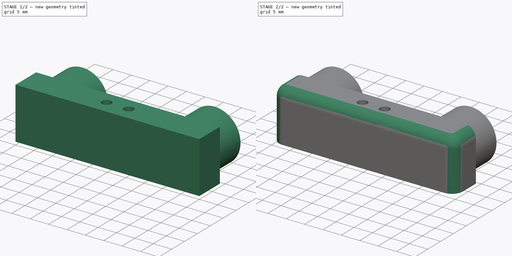
[diagram: build sequence overview — one tinted view per stage of 2, left to right]
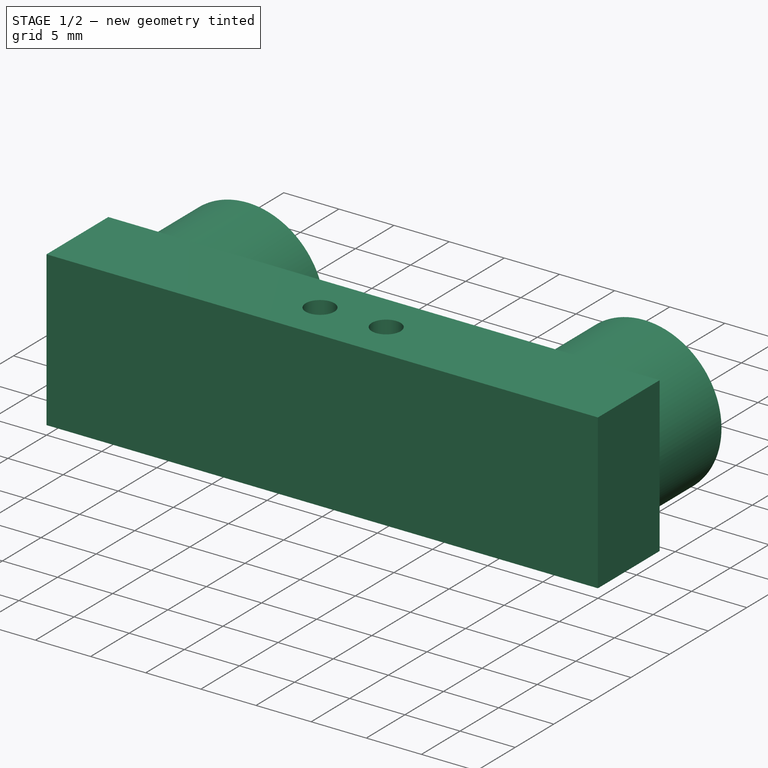
[diagram: stage 1 of 2 — iso view after this stage's code; geometry added in this stage tinted green]
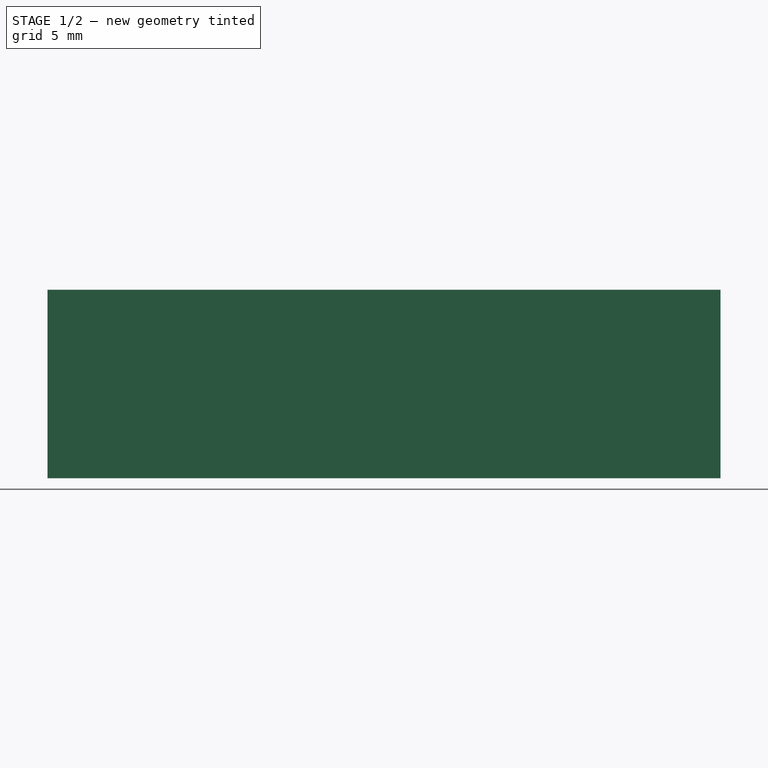
[diagram: stage 1 of 2 — front view after this stage's code; geometry added in this stage tinted green]
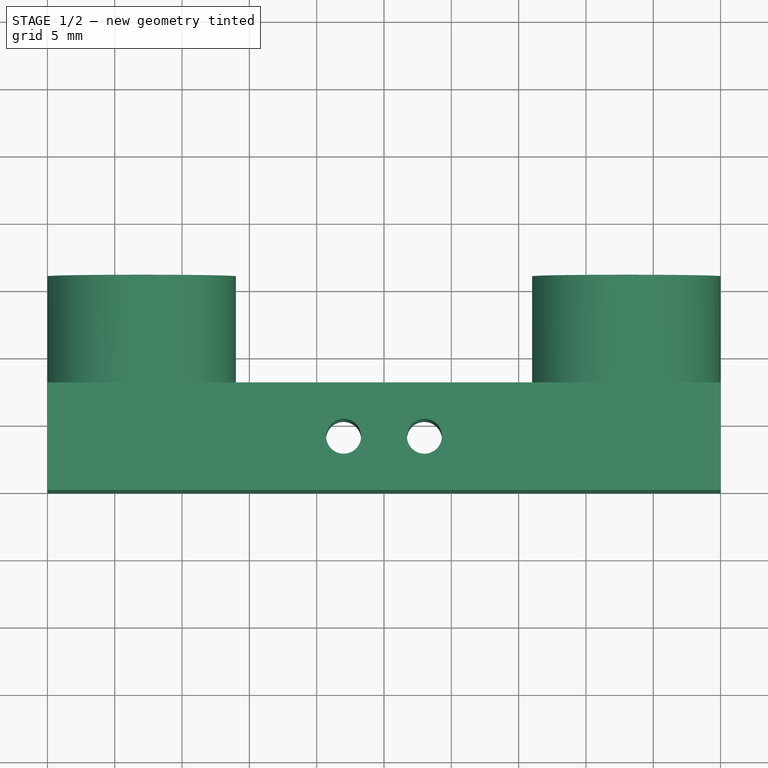
[diagram: stage 1 of 2 — top view after this stage's code; geometry added in this stage tinted green]
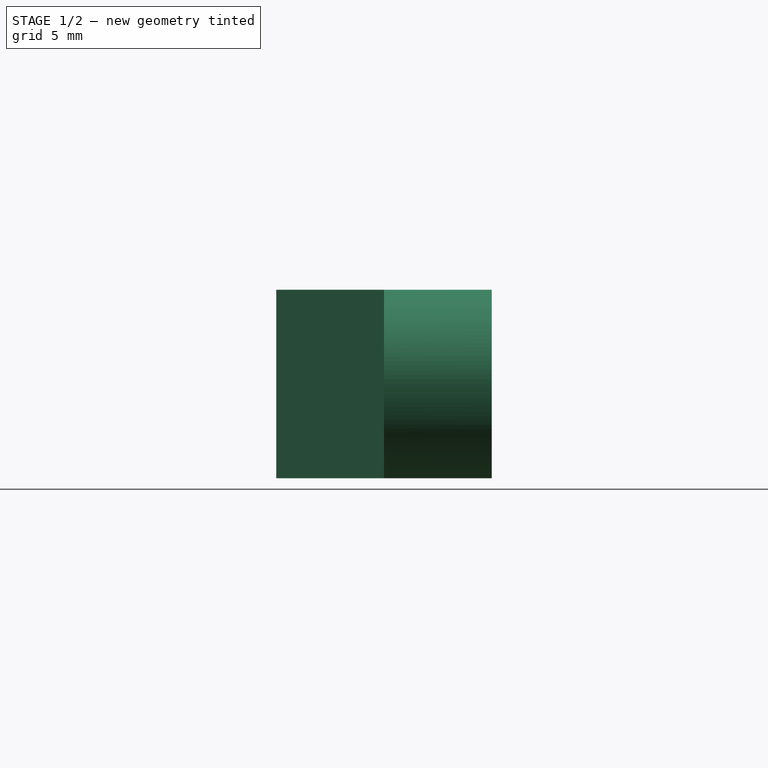
[diagram: stage 1 of 2 — right view after this stage's code; geometry added in this stage tinted green]
FCSTD DOCUMENT  (FreeCAD 0.21R33668 +26 (Git))
Label: stabiliser_holder
License: All rights reserved
LicenseURL: https://en.wikipedia.org/wiki/All_rights_reserved
objects: Sketcher::SketchObject×3, PartDesign::Pad×2, PartDesign::Pocket×1, PartDesign::Fillet×1, PartDesign::Body×1
note: 12 computed .brp shape members not serialized (recipe doc carries the construction recipe); baked Part::Feature solids carry a one-line shape summary decoded from their .brp

FEATURE [Sketcher::SketchObject] Sketch
  FullyConstrained = false
  MapMode = 5
  Support = -> [XY_Plane]
  sketch-geometry (12):
    g0: LineSegment StartX=-50 StartY=8 StartZ=0 EndX=0 EndY=8 EndZ=0
    g1: LineSegment StartX=0 StartY=8 StartZ=0 EndX=0 EndY=0 EndZ=0
    g2: LineSegment StartX=0 StartY=0 StartZ=0 EndX=-50 EndY=0 EndZ=0
    g3: LineSegment StartX=-50 StartY=0 StartZ=0 EndX=-50 EndY=8 EndZ=0
    g4: Circle CenterX=-28 CenterY=4 CenterZ=0 NormalX=0 NormalY=0 NormalZ=1 AngleXU=0 Radius=1.3
    g5: Circle CenterX=-22 CenterY=4 CenterZ=0 NormalX=0 NormalY=0 NormalZ=1 AngleXU=0 Radius=1.3
    g6: GeomPoint X=-50 Y=5.43763 Z=0
    g7: GeomPoint X=0 Y=4 Z=0
    g8: GeomPoint X=-29.2588 Y=3.67544 Z=0
    g9: GeomPoint X=-23.2079 Y=4.48052 Z=0
    g10: LineSegment StartX=-22 StartY=4 StartZ=0 EndX=0 EndY=4 EndZ=0
    g11: LineSegment StartX=-28 StartY=4 StartZ=0 EndX=-22 EndY=4 EndZ=0
  constraints (27):
    c: Coincident(g0,g1)
    c: Coincident(g1,g2)
    c: Coincident(g2,g3)
    c: Coincident(g3,g0)
    c: Horizontal(g0)
    c: Horizontal(g2)
    c: Vertical(g1)
    c: Vertical(g3)
    c: Distance(g1) = 8
    c: Distance(g0) = 50
    c: PointOnObject(g6,g3)
    c: PointOnObject(g7,g1)
    c: Distance(g7,g1) = 4
    c: PointOnObject(g8,g4)
    c: PointOnObject(g9,g5)
    c: Distance(g4,g8) = 1.3
    c: Distance(g9,g5) = 1.3
    c: Coincident(g10,g5)
    c: Coincident(g10,g7)
    c: Horizontal(g10)
    c: Distance(g10) = 22
    c: Coincident(g11,g4)
    c: Coincident(g11,g5)
    c: Horizontal(g11)
    c: Distance(g11) = 6
    c: PointOnObject(g1,g-1)
    c: PointOnObject(g1,g-2)
FEATURE [PartDesign::Pad] Pad
  Direction = (0,0,1)
  Length = 14
  Length2 = 10
  Profile = -> Sketch
  ReferenceAxis = -> Sketch [N_Axis]
  Type = 0
FEATURE [Sketcher::SketchObject] Sketch001
  FullyConstrained = false
  MapMode = 5
  Placement = pos=(0,8,0) rot=(0,0.707107,0.707107;3.14159rad)
  Support = -> [Pad]
  sketch-geometry (12):
    g0: Circle CenterX=5 CenterY=7 CenterZ=0 NormalX=0 NormalY=0 NormalZ=1 AngleXU=0 Radius=4
    g1: Circle CenterX=45 CenterY=7 CenterZ=0 NormalX=0 NormalY=0 NormalZ=1 AngleXU=0 Radius=4
    g2: GeomPoint X=7.36958 Y=10.2226 Z=0
    g3: GeomPoint X=43.5738 Y=10.7371 Z=0
    g4: LineSegment StartX=5 StartY=7 StartZ=0 EndX=45 EndY=7 EndZ=0
    g5: GeomPoint X=25 Y=7 Z=0
    g6: GeomPoint X=25 Y=0 Z=0
    g7: LineSegment StartX=25 StartY=7 StartZ=0 EndX=25 EndY=0 EndZ=0
    g8: Circle CenterX=7 CenterY=7 CenterZ=0 NormalX=0 NormalY=0 NormalZ=1 AngleXU=0 Radius=7
    g9: Circle CenterX=43 CenterY=7 CenterZ=0 NormalX=0 NormalY=0 NormalZ=1 AngleXU=0 Radius=7
    g10: GeomPoint X=2.48013 Y=12.3452 Z=0
    g11: GeomPoint X=37.1344 Y=10.8203 Z=0
  constraints (24):
    c: PointOnObject(g2,g0)
    c: PointOnObject(g3,g1)
    c: Distance(g0,g2) = 4
    c: Distance(g1,g3) = 4
    c: Coincident(g4,g0)
    c: Coincident(g4,g1)
    c: Horizontal(g4)
    c: Distance(g4) = 40
    c: PointOnObject(g5,g4)
    c: Distance(g0,g5) = 20
    c: PointOnObject(g6,g-1)
    c: Distance(g-1,g6) = 25
    c: Coincident(g7,g5)
    c: Coincident(g7,g6)
    c: Vertical(g7)
    c: Distance(g7) = 7
    c: PointOnObject(g8,g4)
    c: Distance(g8,g5) = 18
    c: PointOnObject(g9,g4)
    c: Distance(g5,g9) = 18
    c: PointOnObject(g10,g8)
    c: PointOnObject(g11,g9)
    c: Distance(g8,g10) = 7
    c: Distance(g11,g9) = 7
FEATURE [PartDesign::Pad] Pad001
  BaseFeature = -> Pad
  Direction = (0,1,-2e-16)
  Length = 8
  Length2 = 10
  Profile = -> Sketch001
  ReferenceAxis = -> Sketch001 [N_Axis]
  Type = 0
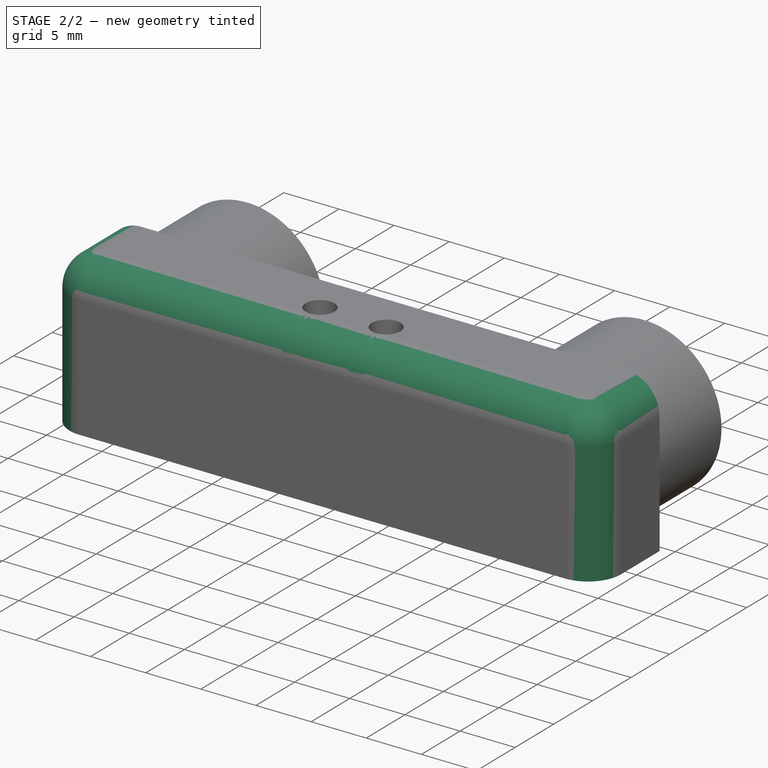
[diagram: stage 2 of 2 — iso view after this stage's code; geometry added in this stage tinted green]
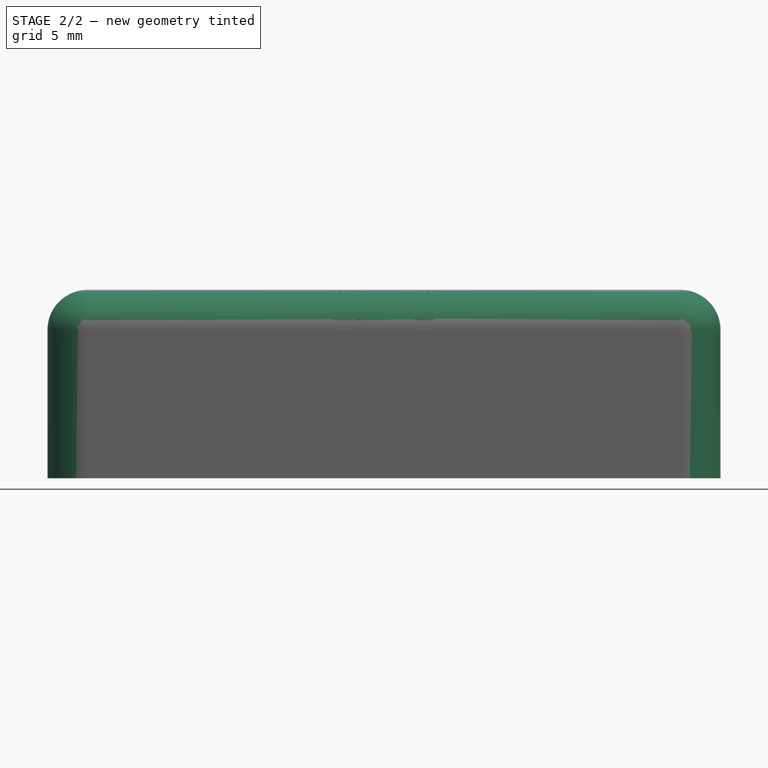
[diagram: stage 2 of 2 — front view after this stage's code; geometry added in this stage tinted green]
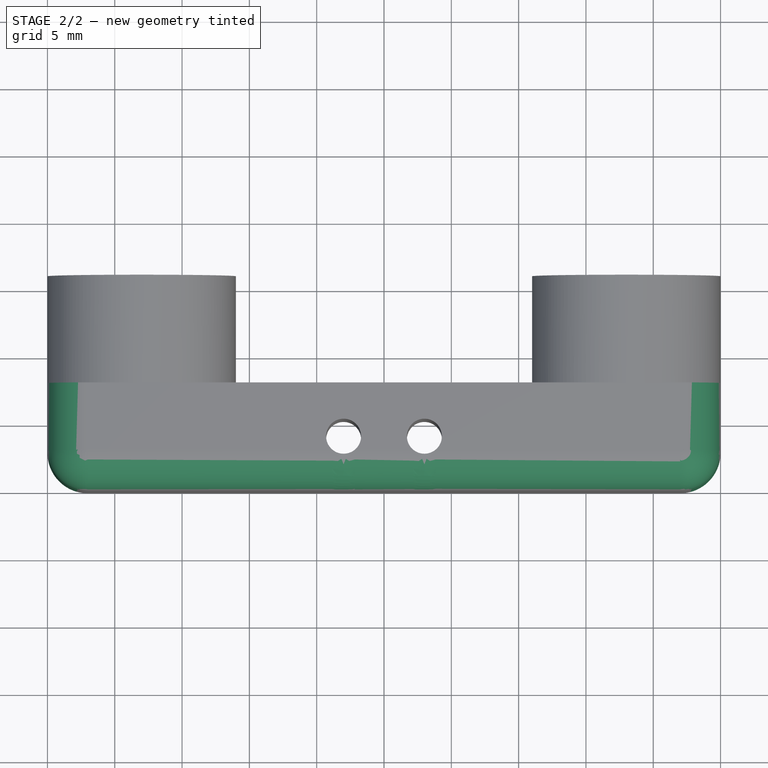
[diagram: stage 2 of 2 — top view after this stage's code; geometry added in this stage tinted green]
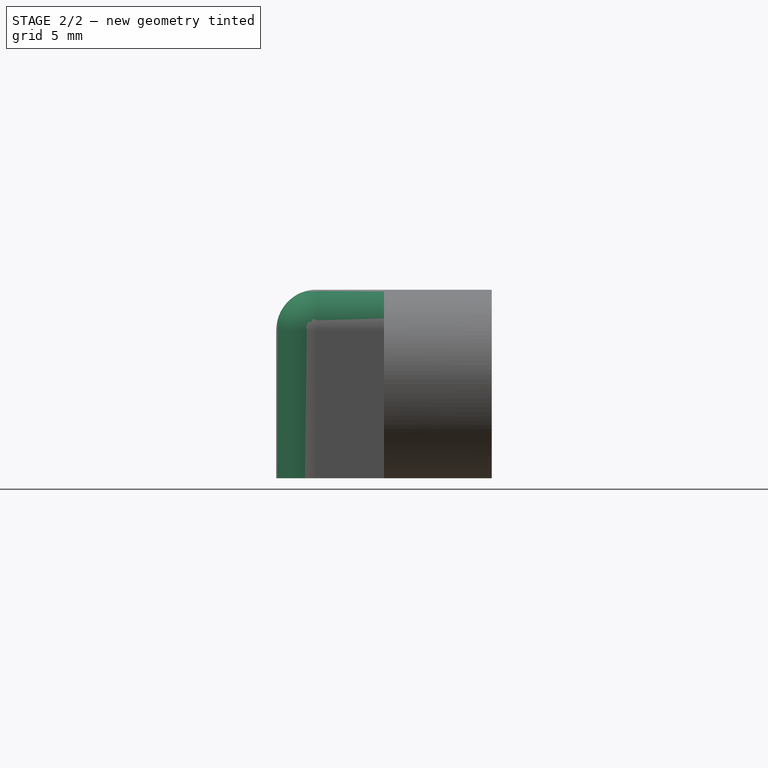
[diagram: stage 2 of 2 — right view after this stage's code; geometry added in this stage tinted green]
FEATURE [Sketcher::SketchObject] Sketch002
  AttachmentOffset = pos=(0,0,8) rot=(0,0,1;0rad)
  FullyConstrained = false
  MapMode = 5
  Placement = pos=(0,16,-1.8e-15) rot=(0,0.707107,0.707107;3.14159rad)
  Support = -> [Pad001]
  sketch-geometry (8):
    g0: Circle CenterX=5 CenterY=7 CenterZ=0 NormalX=0 NormalY=0 NormalZ=1 AngleXU=0 Radius=4
    g1: Circle CenterX=45 CenterY=7 CenterZ=0 NormalX=0 NormalY=0 NormalZ=1 AngleXU=0 Radius=4
    g2: LineSegment StartX=5 StartY=7 StartZ=0 EndX=45 EndY=7 EndZ=0
    g3: GeomPoint X=5.55814 Y=10.9609 Z=0
    g4: GeomPoint X=42.2894 Y=9.94151 Z=0
    g5: GeomPoint X=25 Y=7 Z=0
    g6: GeomPoint X=25 Y=0 Z=0
    g7: LineSegment StartX=25 StartY=0 StartZ=0 EndX=25 EndY=7 EndZ=0
  constraints (16):
    c: Coincident(g2,g0)
    c: Coincident(g2,g1)
    c: Horizontal(g2)
    c: Distance(g2) = 40
    c: PointOnObject(g3,g0)
    c: PointOnObject(g4,g1)
    c: Distance(g3,g0) = 4
    c: Distance(g4,g1) = 4
    c: PointOnObject(g5,g2)
    c: Distance(g0,g5) = 20
    c: PointOnObject(g6,g-1)
    c: Distance(g-1,g6) = 25
    c: Coincident(g7,g6)
    c: Coincident(g7,g5)
    c: Vertical(g7)
    c: Distance(g7) = 7
FEATURE [PartDesign::Pocket] Pocket
  BaseFeature = -> Pad001
  Direction = (0,-1,2e-16)
  Length = 5
  Length2 = 5
  Profile = -> Sketch002
  ReferenceAxis = -> Sketch002 [N_Axis]
  Type = 0
FEATURE [PartDesign::Fillet] Fillet
  Base = -> Pocket [Edge24,Edge26,Edge15,Edge25,Edge17]
  BaseFeature = -> Pocket
  Radius = 3
  SupportTransform = false
  UseAllEdges = false
FEATURE [PartDesign::Body] Body
  Group = -> [Sketch,Pad,Sketch001,Pad001,Sketch002,Pocket,Fillet]
  Origin = -> Origin
  Tip = -> Fillet
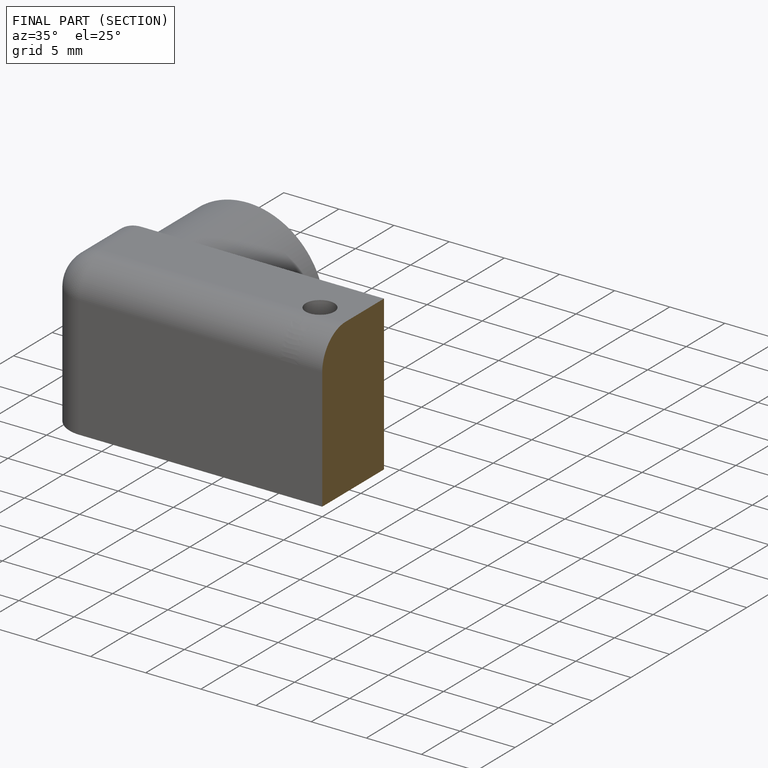
[diagram: finished part — half-section view (interior)]
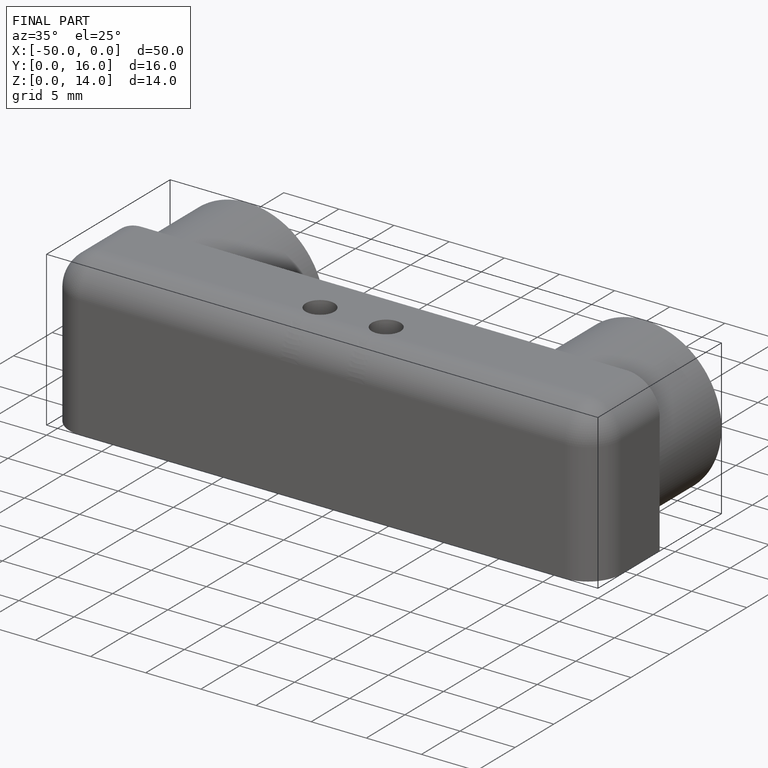
[diagram: finished part — iso view with bounding-box wireframe]
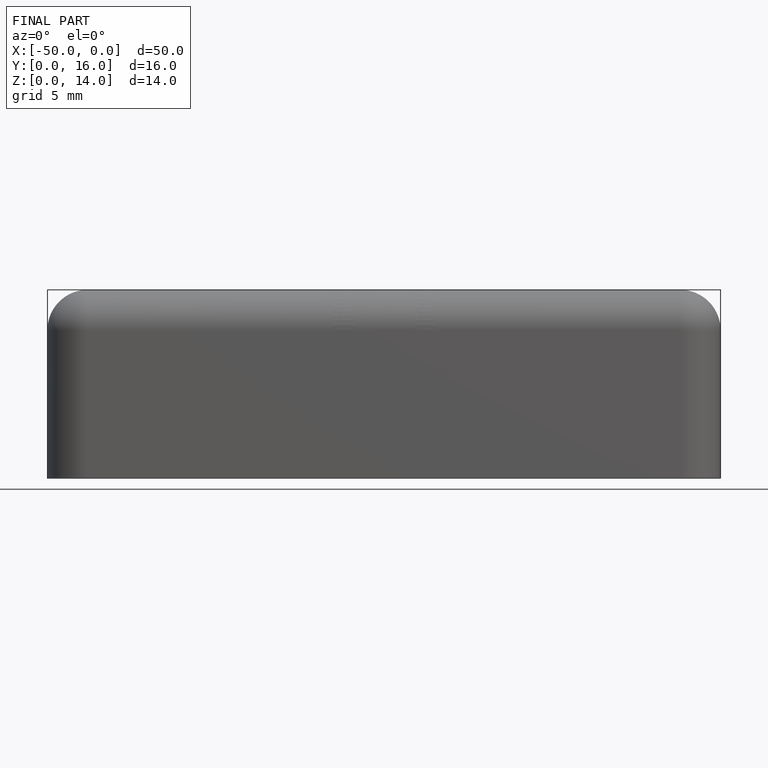
[diagram: finished part — front view with bounding-box wireframe]
